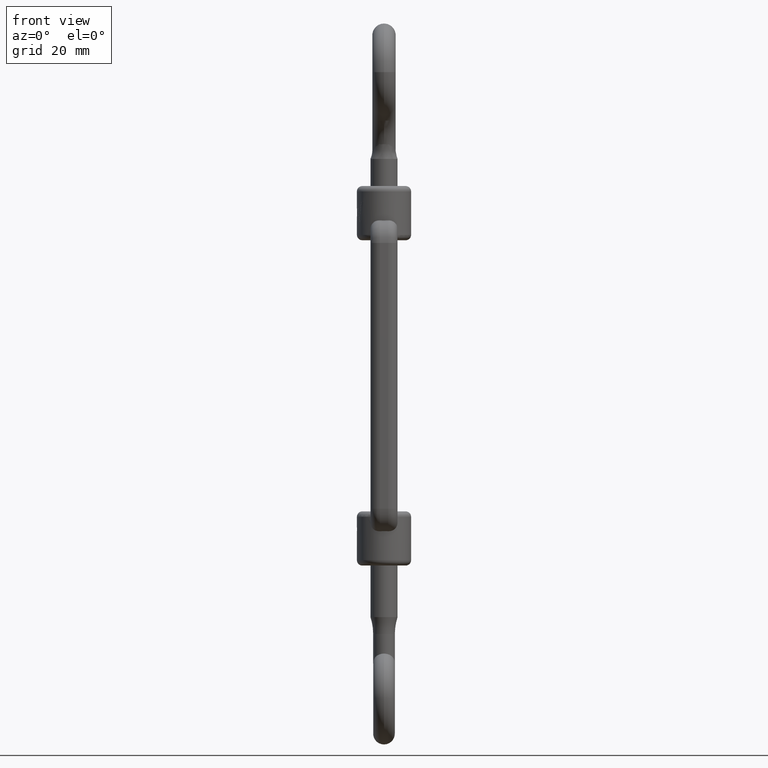
[diagram: clean part render]
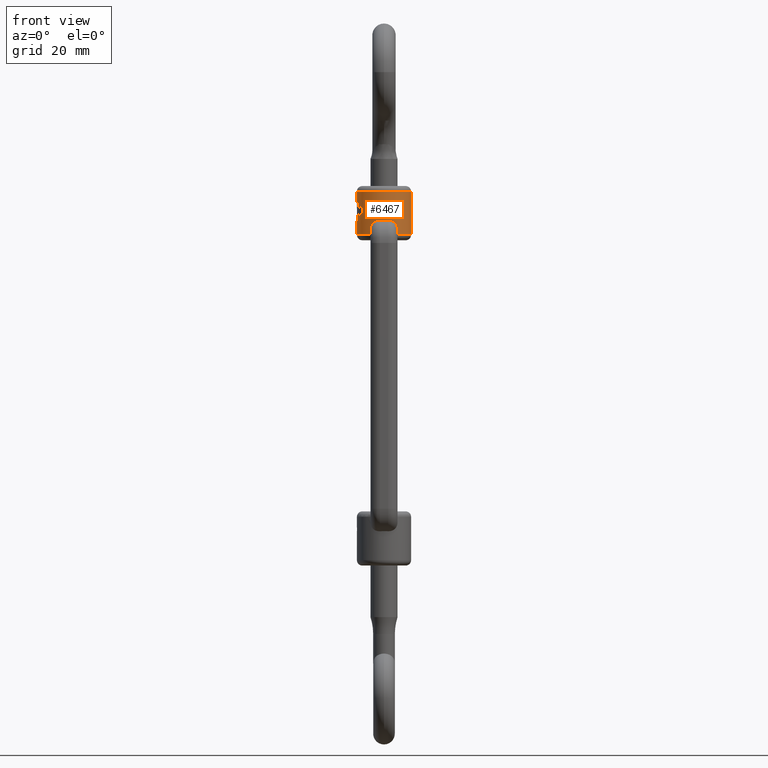
[diagram: same view with one face highlighted and labeled with its STEP entity id]
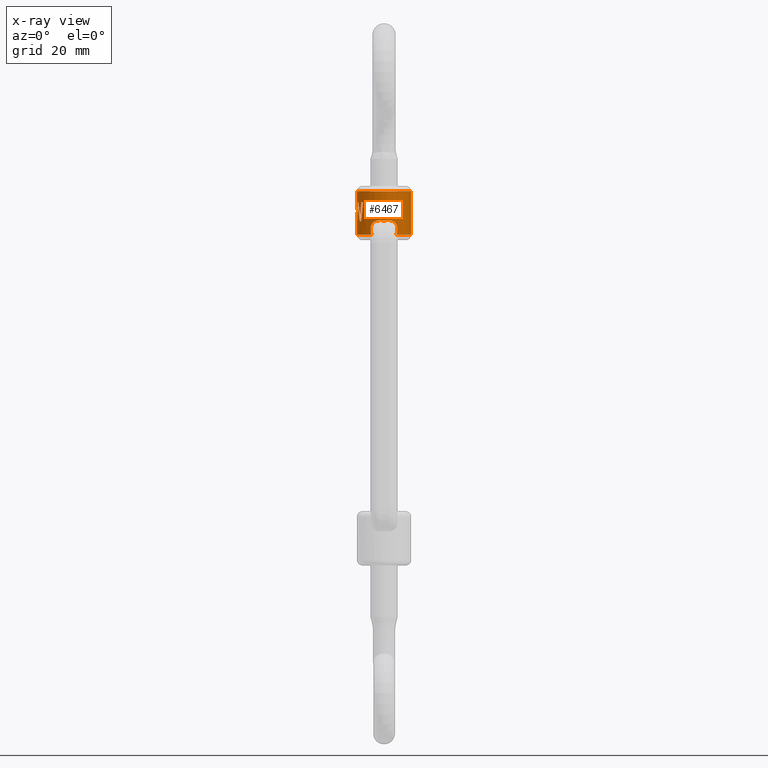
[diagram: x-ray of the same camera — body ghosted, the highlighted face saturated]
A machine part, front view. The second image highlights one B-rep face of the part: STEP entity #6467.
The next image is the same camera in x-ray: the body ghosted, the highlighted face saturated — about 0% of this face is hidden behind the body in this view.
In plain terms, the highlighted cylindrical surface (edge-blend (fillet) strip) has radius 5 mm, axis along (0, 0, 1).
Its self-contained STEP definition (entity closure, byte-faithful):
#68 = CIRCLE ( 'NONE', #6615, 5.000000000000017800 ) ;
#376 = VERTEX_POINT ( 'NONE', #1325 ) ;
#405 = CARTESIAN_POINT ( 'NONE',  ( -4.403188754972537900, -2.368950988957680100, 29.78936298076923000 ) ) ;
#471 = CARTESIAN_POINT ( 'NONE',  ( -4.993749854889917300, -0.2792473244684470800, 30.52624198717948900 ) ) ;
#487 = VERTEX_POINT ( 'NONE', #405 ) ;
#548 = DIRECTION ( 'NONE',  ( -0.9920294417535008300, -0.1260062962483923800, 0.0000000000000000000 ) ) ;
#556 = ORIENTED_EDGE ( 'NONE', *, *, #18108, .F. ) ;
#748 = CARTESIAN_POINT ( 'NONE',  ( 1.793945514977377500, -4.669315782863915100, 28.41415432432325300 ) ) ;
#757 = CARTESIAN_POINT ( 'NONE',  ( -1.917677539176660500, -4.619168442961502300, 28.32554445573602600 ) ) ;
#1109 = CARTESIAN_POINT ( 'NONE',  ( -4.403188754972537900, -2.368950988957680100, 29.78936298076923000 ) ) ;
#1174 = ORIENTED_EDGE ( 'NONE', *, *, #18594, .T. ) ;
#1227 = CARTESIAN_POINT ( 'NONE',  ( -4.189686261041400100, -2.728832906947788600, 28.50000000000000000 ) ) ;
#1233 = B_SPLINE_CURVE_WITH_KNOTS ( 'NONE', 3,
 ( #7587, #15600, #14096, #2208, #2275, #5080, #757, #3766, #17240, #6728, #12508, #6586, #11271, #9619, #12640, #3628 ),
 .UNSPECIFIED., .F., .F.,
 ( 4, 2, 2, 2, 2, 2, 2, 4 ),
 ( 1.998105977672955000E-007, 0.0004793959639593784900, 0.0009585921173209897000, 0.001437788270682600900, 0.001916984424044212300, 0.002396180577405824000, 0.002875376730767435900, 0.003833769037490668900 ),
 .UNSPECIFIED. ) ;
#1325 = CARTESIAN_POINT ( 'NONE',  ( -5.000000000000018700, 5.449554967919442900E-016, 26.00000000000000400 ) ) ;
#1406 = CARTESIAN_POINT ( 'NONE',  ( 0.0000000000000000000, -6.736790278173455400E-017, 26.00000000000000400 ) ) ;
#1516 = EDGE_CURVE ( 'NONE', #487, #13885, #11565, .T. ) ;
#1732 = CARTESIAN_POINT ( 'NONE',  ( -4.999909108654891000, -0.03014805449834647900, 32.00000000000000700 ) ) ;
#1737 = EDGE_CURVE ( 'NONE', #12845, #12320, #2155, .T. ) ;
#1793 = VERTEX_POINT ( 'NONE', #3870 ) ;
#1869 = DIRECTION ( 'NONE',  ( -0.0000000000000000000, -0.0000000000000000000, 1.000000000000000000 ) ) ;
#1935 = CARTESIAN_POINT ( 'NONE',  ( -5.000000000000018700, 5.449554967919442900E-016, 34.00000000000000000 ) ) ;
#1936 = CARTESIAN_POINT ( 'NONE',  ( 0.0000000000000000000, -6.736790278173455400E-017, 28.50000000000000000 ) ) ;
#1960 = LINE ( 'NONE', #9863, #19080 ) ;
#1961 = CARTESIAN_POINT ( 'NONE',  ( -4.926369679634965400, -0.8959571085068797100, 29.31376869658119600 ) ) ;
#2012 = ORIENTED_EDGE ( 'NONE', *, *, #3623, .T. ) ;
#2024 = CIRCLE ( 'NONE', #16693, 5.000000000000018700 ) ;
#2070 = CARTESIAN_POINT ( 'NONE',  ( 0.0000000000000000000, -6.736790278173455400E-017, 28.50000000000000000 ) ) ;
#2073 = B_SPLINE_CURVE_WITH_KNOTS ( 'NONE', 3,
 ( #14516, #7072, #5702, #1109 ),
 .UNSPECIFIED., .F., .F.,
 ( 4, 4 ),
 ( 0.0000000000000000000, 1.000000000000000000 ),
 .UNSPECIFIED. ) ;
#2155 = CIRCLE ( 'NONE', #8590, 5.000000000000017800 ) ;
#2208 = CARTESIAN_POINT ( 'NONE',  ( -1.371883084150162100, -4.810694127353439600, 28.60697782906988700 ) ) ;
#2275 = CARTESIAN_POINT ( 'NONE',  ( -1.519640293973043800, -4.765642751639727100, 28.55574211271080600 ) ) ;
#2383 = EDGE_CURVE ( 'NONE', #13885, #5958, #19060, .T. ) ;
#2428 = DIRECTION ( 'NONE',  ( -0.0000000000000000000, -0.0000000000000000000, 1.000000000000000000 ) ) ;
#2505 = CARTESIAN_POINT ( 'NONE',  ( -4.872491414182467100, -1.121974785241767900, 32.00000000000000000 ) ) ;
#2568 = CARTESIAN_POINT ( 'NONE',  ( -4.964127332039832500, -0.6452044927474965800, 30.52624198717948500 ) ) ;
#2571 = B_SPLINE_CURVE_WITH_KNOTS ( 'NONE', 3,
 ( #17837, #19252, #10286, #5863 ),
 .UNSPECIFIED., .F., .F.,
 ( 4, 4 ),
 ( 0.0000000000000000000, 1.000000000000000000 ),
 .UNSPECIFIED. ) ;
#2583 = CARTESIAN_POINT ( 'NONE',  ( 0.9101627413635772200, -4.919130649371413500, 28.67907773866188500 ) ) ;
#2838 = B_SPLINE_CURVE_WITH_KNOTS ( 'NONE', 3,
 ( #4019, #16046, #14552, #5534, #5409, #7042, #18725, #17432, #14482, #9743, #748, #11263, #16309, #11646, #2583, #7167 ),
 .UNSPECIFIED., .F., .F.,
 ( 4, 2, 2, 2, 2, 2, 2, 4 ),
 ( 2.133531036649570400E-007, 0.0009502819696181882300, 0.001425316277875454900, 0.001900350586132721700, 0.002375384894389988200, 0.002850419202647254700, 0.003325453510904521700, 0.003800487819161788300 ),
 .UNSPECIFIED. ) ;
#3160 = ORIENTED_EDGE ( 'NONE', *, *, #15845, .T. ) ;
#3181 = AXIS2_PLACEMENT_3D ( 'NONE', #5382, #2428, #14520 ) ;
#3378 = ORIENTED_EDGE ( 'NONE', *, *, #14228, .F. ) ;
#3410 = CARTESIAN_POINT ( 'NONE',  ( 0.0000000000000000000, -6.736790278173455400E-017, 34.00000000000000000 ) ) ;
#3593 = VERTEX_POINT ( 'NONE', #13050 ) ;
#3621 = CARTESIAN_POINT ( 'NONE',  ( -4.281288070831903900, -2.585736058970833800, 31.26312099358974500 ) ) ;
#3623 = EDGE_CURVE ( 'NONE', #12320, #487, #2073, .T. ) ;
#3628 = CARTESIAN_POINT ( 'NONE',  ( -2.289481098319985400, -4.445028267675661800, 26.00000000000000400 ) ) ;
#3766 = CARTESIAN_POINT ( 'NONE',  ( -2.135582513642650500, -4.522553656523909300, 28.11322632576554500 ) ) ;
#3870 = CARTESIAN_POINT ( 'NONE',  ( -4.999909108654891000, -0.03014805449834647900, 32.00000000000000700 ) ) ;
#3947 = CARTESIAN_POINT ( 'NONE',  ( 0.7499999999999984500, -4.943429983321316000, 28.66920794535225200 ) ) ;
#4019 = CARTESIAN_POINT ( 'NONE',  ( 2.289481098313321800, -4.445028267679094600, 26.00000000000001100 ) ) ;
#4104 = VERTEX_POINT ( 'NONE', #7831 ) ;
#4134 = CARTESIAN_POINT ( 'NONE',  ( 5.000000000000018700, -6.736790278173455400E-017, 26.00000000000000400 ) ) ;
#4214 = DIRECTION ( 'NONE',  ( 1.000000000000000000, 0.0000000000000000000, 0.0000000000000000000 ) ) ;
#4611 = CARTESIAN_POINT ( 'NONE',  ( 5.000000000000018700, -6.736790278173455400E-017, 34.00000000000000000 ) ) ;
#4632 = CARTESIAN_POINT ( 'NONE',  ( -2.289481098319985400, -4.445028267675661800, 26.00000000000000400 ) ) ;
#4814 = ORIENTED_EDGE ( 'NONE', *, *, #9499, .T. ) ;
#4841 = VERTEX_POINT ( 'NONE', #4611 ) ;
#4868 = CARTESIAN_POINT ( 'NONE',  ( -4.403188754972537900, -2.368950988957680100, 29.78936298076923000 ) ) ;
#5036 = CARTESIAN_POINT ( 'NONE',  ( -4.871161159778742100, -1.159157589016154700, 30.12753739316239500 ) ) ;
#5080 = CARTESIAN_POINT ( 'NONE',  ( -1.790885484529391800, -4.670480343671799900, 28.41607058282167800 ) ) ;
#5092 = VERTEX_POINT ( 'NONE', #14809 ) ;
#5095 = B_SPLINE_CURVE_WITH_KNOTS ( 'NONE', 3,
 ( #14307, #17186, #5164, #18685 ),
 .UNSPECIFIED., .F., .F.,
 ( 4, 4 ),
 ( 0.0000000000000000000, 1.000000000000000000 ),
 .UNSPECIFIED. ) ;
#5164 = CARTESIAN_POINT ( 'NONE',  ( -4.719834365879036000, -1.671532843093066900, 30.12753739316239500 ) ) ;
#5196 = ORIENTED_EDGE ( 'NONE', *, *, #16078, .T. ) ;
#5309 = CARTESIAN_POINT ( 'NONE',  ( -4.214384062390714700, -2.690532842146201800, 32.00000000000000000 ) ) ;
#5382 = CARTESIAN_POINT ( 'NONE',  ( 0.0000000000000000000, -6.736790278173455400E-017, 32.00000000000000000 ) ) ;
#5386 = CARTESIAN_POINT ( 'NONE',  ( 0.0000000000000000000, -6.736790278173455400E-017, 32.00000000000000000 ) ) ;
#5409 = CARTESIAN_POINT ( 'NONE',  ( 2.495645709016409300, -4.332787632476045500, 27.24311862598024100 ) ) ;
#5410 = VECTOR ( 'NONE', #9180, 1000.000000000000000 ) ;
#5481 = CARTESIAN_POINT ( 'NONE',  ( -4.983699692777189000, -0.4034072039673246600, 29.78936298076923000 ) ) ;
#5534 = CARTESIAN_POINT ( 'NONE',  ( 2.505392440031320300, -4.327019547958215600, 27.08082140526005300 ) ) ;
#5539 = EDGE_CURVE ( 'NONE', #17178, #15547, #7952, .T. ) ;
#5702 = CARTESIAN_POINT ( 'NONE',  ( -4.517460269023220400, -2.156553582668139700, 30.52624198717948900 ) ) ;
#5796 = EDGE_CURVE ( 'NONE', #8821, #5979, #15714, .T. ) ;
#5863 = CARTESIAN_POINT ( 'NONE',  ( -4.189686261041400100, -2.728832906947788600, 28.50000000000000000 ) ) ;
#5958 = VERTEX_POINT ( 'NONE', #10141 ) ;
#5979 = VERTEX_POINT ( 'NONE', #11845 ) ;
#6013 = ORIENTED_EDGE ( 'NONE', *, *, #12903, .F. ) ;
#6034 = VERTEX_POINT ( 'NONE', #15133 ) ;
#6243 = CARTESIAN_POINT ( 'NONE',  ( -4.999158024311052300, -0.1547117623268116600, 31.26312099358975200 ) ) ;
#6342 = CARTESIAN_POINT ( 'NONE',  ( -5.000000000000018700, 5.449554967919442900E-016, 25.00000000000000000 ) ) ;
#6386 = CARTESIAN_POINT ( 'NONE',  ( -4.344281346566566200, -2.478442675145697800, 30.52624198717948500 ) ) ;
#6467 = ADVANCED_FACE ( 'NONE', ( #18504 ), #13831, .T. ) ;
#6586 = CARTESIAN_POINT ( 'NONE',  ( -2.494936923623561200, -4.333203177099471200, 27.25006801878102200 ) ) ;
#6615 = AXIS2_PLACEMENT_3D ( 'NONE', #10928, #9413, #18346 ) ;
#6728 = CARTESIAN_POINT ( 'NONE',  ( -2.377316394687835700, -4.399459459099723800, 27.71391264404029500 ) ) ;
#6845 = CARTESIAN_POINT ( 'NONE',  ( 0.0000000000000000000, -6.736790278173455400E-017, 25.00000000000000000 ) ) ;
#7042 = CARTESIAN_POINT ( 'NONE',  ( 2.432993866529956400, -4.368276206754446300, 27.55640571935242300 ) ) ;
#7072 = CARTESIAN_POINT ( 'NONE',  ( -4.616336007802419600, -1.935875125153728700, 31.26312099358974500 ) ) ;
#7099 = LINE ( 'NONE', #12394, #18611 ) ;
#7167 = CARTESIAN_POINT ( 'NONE',  ( 0.7499999999999984500, -4.943429983321316000, 28.66920794535225200 ) ) ;
#7400 = ORIENTED_EDGE ( 'NONE', *, *, #2383, .T. ) ;
#7587 = CARTESIAN_POINT ( 'NONE',  ( -0.7499999999999984500, -4.943429983321316000, 28.66920794535225200 ) ) ;
#7715 = AXIS2_PLACEMENT_3D ( 'NONE', #1936, #1869, #9223 ) ;
#7831 = CARTESIAN_POINT ( 'NONE',  ( -0.7499999999999984500, -4.943429983321316000, 28.66920794535225200 ) ) ;
#7836 = ORIENTED_EDGE ( 'NONE', *, *, #13221, .T. ) ;
#7926 = CARTESIAN_POINT ( 'NONE',  ( -4.960147208767522500, -0.6300314812419644000, 28.50000000000000000 ) ) ;
#7952 = CIRCLE ( 'NONE', #7715, 5.000000000000018700 ) ;
#8103 = B_SPLINE_CURVE_WITH_KNOTS ( 'NONE', 3,
 ( #11566, #2568, #18978, #2505 ),
 .UNSPECIFIED., .F., .F.,
 ( 4, 4 ),
 ( 0.0000000000000000000, 1.000000000000000000 ),
 .UNSPECIFIED. ) ;
#8390 = EDGE_CURVE ( 'NONE', #4104, #17098, #1233, .T. ) ;
#8590 = AXIS2_PLACEMENT_3D ( 'NONE', #5386, #11554, #12925 ) ;
#8761 = DIRECTION ( 'NONE',  ( -0.0000000000000000000, -0.0000000000000000000, 1.000000000000000000 ) ) ;
#8821 = VERTEX_POINT ( 'NONE', #9311 ) ;
#9180 = DIRECTION ( 'NONE',  ( -0.0000000000000000000, -0.0000000000000000000, 1.000000000000000000 ) ) ;
#9223 = DIRECTION ( 'NONE',  ( -0.8379372522082768600, -0.5457665813895556900, 0.0000000000000000000 ) ) ;
#9274 = ORIENTED_EDGE ( 'NONE', *, *, #1737, .T. ) ;
#9311 = CARTESIAN_POINT ( 'NONE',  ( -5.000000000000018700, 5.449554967919442900E-016, 28.50000000000000000 ) ) ;
#9413 = DIRECTION ( 'NONE',  ( -0.0000000000000000000, -0.0000000000000000000, 1.000000000000000000 ) ) ;
#9499 = EDGE_CURVE ( 'NONE', #1793, #16750, #13512, .T. ) ;
#9545 = ORIENTED_EDGE ( 'NONE', *, *, #15473, .T. ) ;
#9619 = CARTESIAN_POINT ( 'NONE',  ( -2.482270838799649000, -4.340350671651662200, 26.60545416827115900 ) ) ;
#9743 = CARTESIAN_POINT ( 'NONE',  ( 1.920616988522968500, -4.617954996606048500, 28.32330213461092000 ) ) ;
#9863 = CARTESIAN_POINT ( 'NONE',  ( -5.000000000000018700, 5.449554967919442900E-016, 25.00000000000000000 ) ) ;
#10032 = CARTESIAN_POINT ( 'NONE',  ( -4.508966568507021900, -2.160837912497414900, 28.50000000000000000 ) ) ;
#10141 = CARTESIAN_POINT ( 'NONE',  ( -3.838625990118560000, -3.203896145006340100, 32.00000000000000000 ) ) ;
#10155 = ORIENTED_EDGE ( 'NONE', *, *, #18991, .T. ) ;
#10286 = CARTESIAN_POINT ( 'NONE',  ( -4.082161935561307700, -2.893919302690341600, 29.66666666666666800 ) ) ;
#10460 = ORIENTED_EDGE ( 'NONE', *, *, #11573, .T. ) ;
#10643 = ORIENTED_EDGE ( 'NONE', *, *, #8390, .F. ) ;
#10808 = LINE ( 'NONE', #6342, #5410 ) ;
#10885 = ORIENTED_EDGE ( 'NONE', *, *, #5539, .F. ) ;
#10928 = CARTESIAN_POINT ( 'NONE',  ( 0.0000000000000000000, -6.736790278173455400E-017, 32.00000000000000000 ) ) ;
#10968 = CARTESIAN_POINT ( 'NONE',  ( -0.7499999999999984500, -4.943429983321316000, 28.66920794535225200 ) ) ;
#10974 = EDGE_CURVE ( 'NONE', #6034, #13662, #2838, .T. ) ;
#11026 = DIRECTION ( 'NONE',  ( -0.0000000000000000000, -0.0000000000000000000, 1.000000000000000000 ) ) ;
#11033 = CARTESIAN_POINT ( 'NONE',  ( -0.5013698297990524200, -4.981151287816342000, 28.65388647689130500 ) ) ;
#11167 = CARTESIAN_POINT ( 'NONE',  ( 0.7499999999999984500, -4.943429983321316000, 28.66920794535225200 ) ) ;
#11250 = DIRECTION ( 'NONE',  ( -0.0000000000000000000, -0.0000000000000000000, 1.000000000000000000 ) ) ;
#11263 = CARTESIAN_POINT ( 'NONE',  ( 1.522147206561103200, -4.764852387258995000, 28.55478490014212400 ) ) ;
#11271 = CARTESIAN_POINT ( 'NONE',  ( -2.505241096406009700, -4.327105864939533800, 27.08943584031789700 ) ) ;
#11383 = EDGE_CURVE ( 'NONE', #376, #17098, #2024, .T. ) ;
#11554 = DIRECTION ( 'NONE',  ( -0.0000000000000000000, -0.0000000000000000000, 1.000000000000000000 ) ) ;
#11565 = B_SPLINE_CURVE_WITH_KNOTS ( 'NONE', 3,
 ( #4868, #6386, #3621, #16968 ),
 .UNSPECIFIED., .F., .F.,
 ( 4, 4 ),
 ( 0.0000000000000000000, 1.000000000000000000 ),
 .UNSPECIFIED. ) ;
#11566 = CARTESIAN_POINT ( 'NONE',  ( -4.983699692777189000, -0.4034072039673246600, 29.78936298076923000 ) ) ;
#11573 = EDGE_CURVE ( 'NONE', #3593, #1793, #68, .T. ) ;
#11593 = VERTEX_POINT ( 'NONE', #1935 ) ;
#11646 = CARTESIAN_POINT ( 'NONE',  ( 1.068171651813774000, -4.887103383021907300, 28.66821400645469700 ) ) ;
#11845 = CARTESIAN_POINT ( 'NONE',  ( -4.960147208767522500, -0.6300314812419644000, 28.50000000000000000 ) ) ;
#12299 = CARTESIAN_POINT ( 'NONE',  ( -4.983699692777189000, -0.4034072039673246600, 29.78936298076923000 ) ) ;
#12320 = VERTEX_POINT ( 'NONE', #14720 ) ;
#12394 = CARTESIAN_POINT ( 'NONE',  ( 5.000000000000018700, -6.736790278173455400E-017, 25.00000000000000000 ) ) ;
#12484 = DIRECTION ( 'NONE',  ( -1.000000000000000000, 0.0000000000000000000, 0.0000000000000000000 ) ) ;
#12508 = CARTESIAN_POINT ( 'NONE',  ( -2.430748074340822300, -4.369533593642866100, 27.56406844130529200 ) ) ;
#12640 = CARTESIAN_POINT ( 'NONE',  ( -2.397032112431820100, -4.389632441353468200, 26.29852285200371000 ) ) ;
#12685 = DIRECTION ( 'NONE',  ( 1.000000000000000000, 0.0000000000000000000, 0.0000000000000000000 ) ) ;
#12845 = VERTEX_POINT ( 'NONE', #16642 ) ;
#12903 = EDGE_CURVE ( 'NONE', #3593, #11593, #1960, .T. ) ;
#12925 = DIRECTION ( 'NONE',  ( -0.9397567827042578900, -0.3418438084291453600, 0.0000000000000000000 ) ) ;
#12953 = VERTEX_POINT ( 'NONE', #4134 ) ;
#13050 = CARTESIAN_POINT ( 'NONE',  ( -5.000000000000018700, 5.449554967919442900E-016, 32.00000000000000000 ) ) ;
#13204 = EDGE_CURVE ( 'NONE', #12953, #4841, #7099, .T. ) ;
#13221 = EDGE_CURVE ( 'NONE', #5092, #5979, #17774, .T. ) ;
#13512 = B_SPLINE_CURVE_WITH_KNOTS ( 'NONE', 3,
 ( #1732, #6243, #471, #12299 ),
 .UNSPECIFIED., .F., .F.,
 ( 4, 4 ),
 ( 0.0000000000000000000, 1.000000000000000000 ),
 .UNSPECIFIED. ) ;
#13662 = VERTEX_POINT ( 'NONE', #3947 ) ;
#13831 = CYLINDRICAL_SURFACE ( 'NONE', #14786, 5.000000000000018700 ) ;
#13885 = VERTEX_POINT ( 'NONE', #5309 ) ;
#14073 = DIRECTION ( 'NONE',  ( 0.0000000000000000000, 0.0000000000000000000, -1.000000000000000000 ) ) ;
#14096 = CARTESIAN_POINT ( 'NONE',  ( -1.066173458229534600, -4.887546965554100200, 28.66845321259089000 ) ) ;
#14126 = CARTESIAN_POINT ( 'NONE',  ( -0.2520362954604741200, -4.999899586334668000, 28.64582337413579400 ) ) ;
#14194 = CARTESIAN_POINT ( 'NONE',  ( 0.2480363298896015000, -5.000099613679106300, 28.64573893943954300 ) ) ;
#14228 = EDGE_CURVE ( 'NONE', #13662, #4104, #18352, .T. ) ;
#14307 = CARTESIAN_POINT ( 'NONE',  ( -4.508966568507021900, -2.160837912497414900, 28.50000000000000000 ) ) ;
#14470 = AXIS2_PLACEMENT_3D ( 'NONE', #1406, #8761, #4214 ) ;
#14482 = CARTESIAN_POINT ( 'NONE',  ( 2.139019059966379200, -4.520937450173621900, 28.10923773190317100 ) ) ;
#14516 = CARTESIAN_POINT ( 'NONE',  ( -4.698783913521307200, -1.709219042145732300, 32.00000000000000000 ) ) ;
#14520 = DIRECTION ( 'NONE',  ( -0.7677251980237090900, -0.6407792290012656000, 0.0000000000000000000 ) ) ;
#14552 = CARTESIAN_POINT ( 'NONE',  ( 2.480811597676267700, -4.341190113866228600, 26.59919999189920500 ) ) ;
#14720 = CARTESIAN_POINT ( 'NONE',  ( -4.698783913521307200, -1.709219042145732300, 32.00000000000000000 ) ) ;
#14723 = DIRECTION ( 'NONE',  ( 1.000000000000000000, 0.0000000000000000000, 0.0000000000000000000 ) ) ;
#14786 = AXIS2_PLACEMENT_3D ( 'NONE', #6845, #11250, #12685 ) ;
#14809 = CARTESIAN_POINT ( 'NONE',  ( -4.795232974038163400, -1.416241760681168100, 30.94130608974358800 ) ) ;
#15133 = CARTESIAN_POINT ( 'NONE',  ( 2.289481098313321800, -4.445028267679094600, 26.00000000000001100 ) ) ;
#15155 = ORIENTED_EDGE ( 'NONE', *, *, #10974, .F. ) ;
#15473 = EDGE_CURVE ( 'NONE', #17178, #5092, #5095, .T. ) ;
#15547 = VERTEX_POINT ( 'NONE', #1227 ) ;
#15600 = CARTESIAN_POINT ( 'NONE',  ( -0.9098819461960456800, -4.919173250637412000, 28.67906043507279200 ) ) ;
#15714 = CIRCLE ( 'NONE', #19162, 5.000000000000018700 ) ;
#15729 = DIRECTION ( 'NONE',  ( -0.0000000000000000000, -0.0000000000000000000, 1.000000000000000000 ) ) ;
#15845 = EDGE_CURVE ( 'NONE', #6034, #12953, #16255, .T. ) ;
#15973 = DIRECTION ( 'NONE',  ( -0.0000000000000000000, -0.0000000000000000000, 1.000000000000000000 ) ) ;
#16046 = CARTESIAN_POINT ( 'NONE',  ( 2.396436689558278900, -4.389939123186283400, 26.29687017270160300 ) ) ;
#16078 = EDGE_CURVE ( 'NONE', #4841, #11593, #17426, .T. ) ;
#16255 = CIRCLE ( 'NONE', #14470, 5.000000000000018700 ) ;
#16289 = DIRECTION ( 'NONE',  ( -0.0000000000000000000, -0.0000000000000000000, 1.000000000000000000 ) ) ;
#16309 = CARTESIAN_POINT ( 'NONE',  ( 1.373415937675254800, -4.810249350732489900, 28.60650508250059700 ) ) ;
#16593 = ORIENTED_EDGE ( 'NONE', *, *, #1516, .T. ) ;
#16642 = CARTESIAN_POINT ( 'NONE',  ( -4.872491414182467100, -1.121974785241767900, 32.00000000000000000 ) ) ;
#16693 = AXIS2_PLACEMENT_3D ( 'NONE', #19099, #16289, #14723 ) ;
#16750 = VERTEX_POINT ( 'NONE', #5481 ) ;
#16932 = CARTESIAN_POINT ( 'NONE',  ( -4.795232974038163400, -1.416241760681168100, 30.94130608974358800 ) ) ;
#16968 = CARTESIAN_POINT ( 'NONE',  ( -4.214384062390714700, -2.690532842146201800, 32.00000000000000000 ) ) ;
#16989 = ORIENTED_EDGE ( 'NONE', *, *, #5796, .F. ) ;
#17098 = VERTEX_POINT ( 'NONE', #4632 ) ;
#17106 = AXIS2_PLACEMENT_3D ( 'NONE', #3410, #14073, #12484 ) ;
#17178 = VERTEX_POINT ( 'NONE', #10032 ) ;
#17186 = CARTESIAN_POINT ( 'NONE',  ( -4.624006370031741800, -1.920787228398146400, 29.31376869658119900 ) ) ;
#17202 = CARTESIAN_POINT ( 'NONE',  ( 0.5000544358500965700, -4.981350854810322900, 28.65380541767436300 ) ) ;
#17240 = CARTESIAN_POINT ( 'NONE',  ( -2.230116650194920300, -4.475874942314295200, 27.98815101699451400 ) ) ;
#17426 = CIRCLE ( 'NONE', #17106, 5.000000000000018700 ) ;
#17432 = CARTESIAN_POINT ( 'NONE',  ( 2.233469516915346900, -4.474192552853913300, 27.98316289257686100 ) ) ;
#17549 = ORIENTED_EDGE ( 'NONE', *, *, #13204, .T. ) ;
#17567 = EDGE_LOOP ( 'NONE', ( #556, #18161, #10643, #3378, #15155, #3160, #17549, #5196, #6013, #10460, #4814, #10155, #9274, #2012, #16593, #7400, #1174, #10885, #9545, #7836, #16989 ) ) ;
#17774 = B_SPLINE_CURVE_WITH_KNOTS ( 'NONE', 3,
 ( #16932, #5036, #1961, #7926 ),
 .UNSPECIFIED., .F., .F.,
 ( 4, 4 ),
 ( 0.0000000000000000000, 1.000000000000000000 ),
 .UNSPECIFIED. ) ;
#17837 = CARTESIAN_POINT ( 'NONE',  ( -3.838625990118560000, -3.203896145006340100, 32.00000000000000000 ) ) ;
#18108 = EDGE_CURVE ( 'NONE', #376, #8821, #10808, .T. ) ;
#18161 = ORIENTED_EDGE ( 'NONE', *, *, #11383, .T. ) ;
#18346 = DIRECTION ( 'NONE',  ( -0.9999818217309746100, -0.006029610899669460800, 0.0000000000000000000 ) ) ;
#18352 = B_SPLINE_CURVE_WITH_KNOTS ( 'NONE', 3,
 ( #11167, #17202, #14194, #14126, #11033, #10968 ),
 .UNSPECIFIED., .F., .F.,
 ( 4, 2, 4 ),
 ( 0.01429650777373118200, 0.01504686889789408700, 0.01579723002205699400 ),
 .UNSPECIFIED. ) ;
#18504 = FACE_OUTER_BOUND ( 'NONE', #17567, .T. ) ;
#18594 = EDGE_CURVE ( 'NONE', #5958, #15547, #2571, .T. ) ;
#18611 = VECTOR ( 'NONE', #11026, 1000.000000000000000 ) ;
#18685 = CARTESIAN_POINT ( 'NONE',  ( -4.795232974038163400, -1.416241760681168100, 30.94130608974358800 ) ) ;
#18725 = CARTESIAN_POINT ( 'NONE',  ( 2.379636091792325800, -4.398194760767517600, 27.70828295414995400 ) ) ;
#18978 = CARTESIAN_POINT ( 'NONE',  ( -4.926926969668358000, -0.8855730583757828200, 31.26312099358974500 ) ) ;
#18991 = EDGE_CURVE ( 'NONE', #16750, #12845, #8103, .T. ) ;
#19060 = CIRCLE ( 'NONE', #3181, 5.000000000000018700 ) ;
#19080 = VECTOR ( 'NONE', #15973, 1000.000000000000000 ) ;
#19099 = CARTESIAN_POINT ( 'NONE',  ( 0.0000000000000000000, -6.736790278173455400E-017, 26.00000000000000400 ) ) ;
#19162 = AXIS2_PLACEMENT_3D ( 'NONE', #2070, #15729, #548 ) ;
#19252 = CARTESIAN_POINT ( 'NONE',  ( -3.964869253684817400, -3.052642592871659000, 30.83333333333333600 ) ) ;